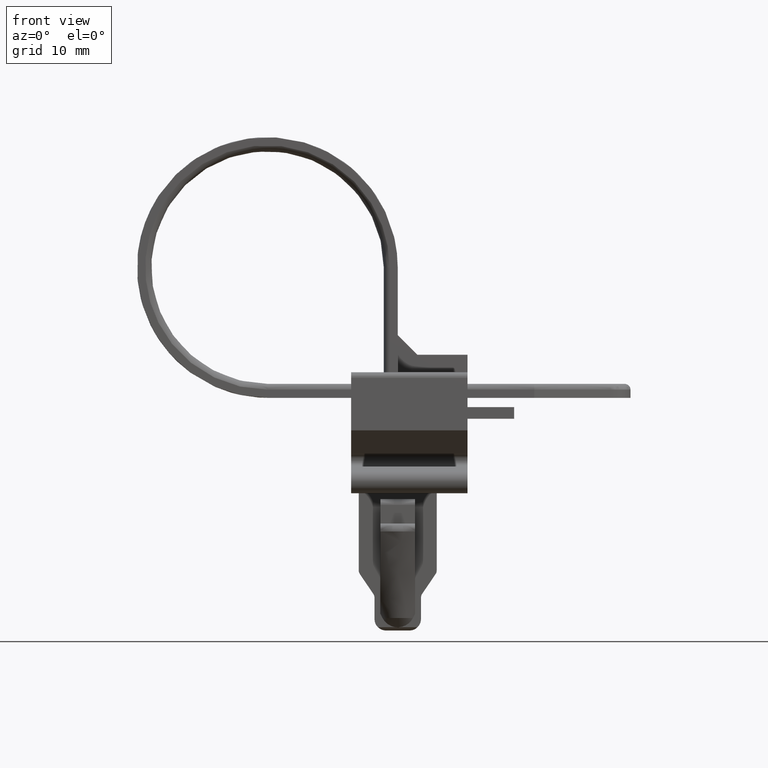
[diagram: clean part render]
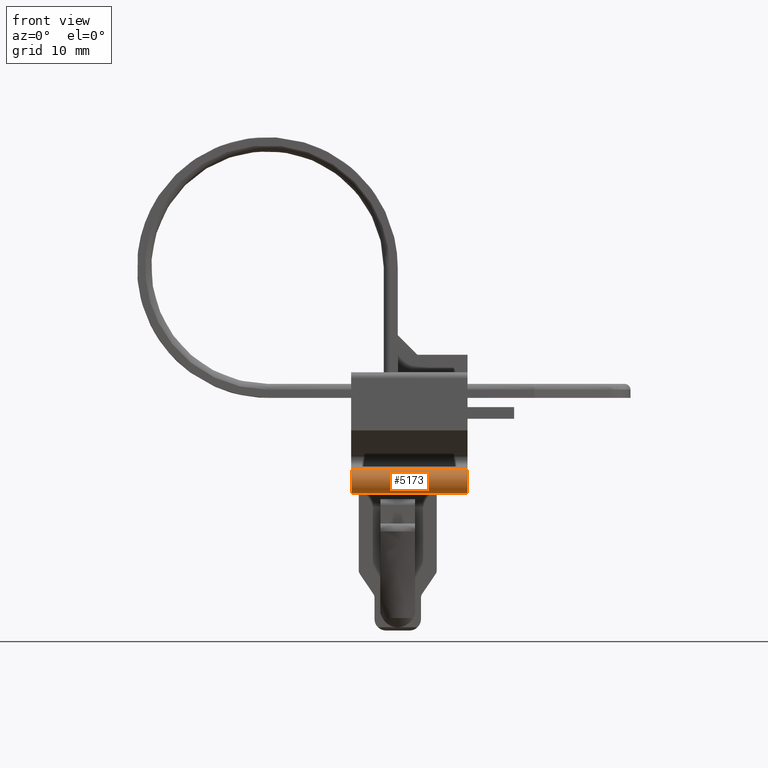
[diagram: same view with one face highlighted and labeled with its STEP entity id]
A machine part, front view. The second image highlights one B-rep face of the part: STEP entity #5173.
In plain terms, the highlighted face is a freeform B-spline surface patch.
Its self-contained STEP definition (entity closure, byte-faithful):
#4898=CARTESIAN_POINT('',(7.200000000000100,-7.879256815548451,-19.183986959648550));
#4899=VERTEX_POINT('',#4898);
#4905=CARTESIAN_POINT('',(7.200000000000100,-9.474949706095918,-18.177375280827722));
#4906=VERTEX_POINT('',#4905);
#4907=CARTESIAN_POINT('',(7.200000000000100,-7.879256815548451,-19.183986959648550));
#4908=CARTESIAN_POINT('',(7.200000000000090,-7.984860701149176,-19.267806589906218));
#4909=CARTESIAN_POINT('',(7.200000000000117,-8.201358140242341,-19.376823101879971));
#4910=CARTESIAN_POINT('',(7.200000000000092,-8.517697770892641,-19.412137261395021));
#4911=CARTESIAN_POINT('',(7.200000000000112,-8.753825177536770,-19.374386756341298));
#4912=CARTESIAN_POINT('',(7.200000000000085,-8.940727219770681,-19.303910030193531));
#4913=CARTESIAN_POINT('',(7.200000000000095,-9.095275610138501,-19.210525127734300));
#4914=CARTESIAN_POINT('',(7.200000000000067,-9.239766740479899,-19.082127573200260));
#4915=CARTESIAN_POINT('',(7.200000000000163,-9.380791900713467,-18.897387134073789));
#4916=CARTESIAN_POINT('',(7.200000000000092,-9.475021638305330,-18.669234554482550));
#4917=CARTESIAN_POINT('',(7.200000000000079,-9.508912143793260,-18.413235099029929));
#4918=CARTESIAN_POINT('',(7.200000000000111,-9.493549521142786,-18.258725168935030));
#4919=CARTESIAN_POINT('',(7.200000000000100,-9.474949706095918,-18.177375280827722));
#4920=B_SPLINE_CURVE_WITH_KNOTS('',3,(#4907,#4908,#4909,#4910,#4911,#4912,#4913,#4914,#4915,#4916,#4917,#4918,#4919),.UNSPECIFIED.,.F.,.U.,(4,1,1,1,1,1,1,1,1,1,4),(0.000000161968556,0.404421100493131,0.712574501903051,0.943678572767629,1.117021800657406,1.309582509630427,1.482896416035236,1.694756974664033,2.002897811495661,2.214758370134401,2.465103124568117),.UNSPECIFIED.);
#4921=EDGE_CURVE('',#4899,#4906,#4920,.T.);
#4923=CARTESIAN_POINT('',(7.200000000000100,-7.600477000000000,-17.963235999999899));
#4924=VERTEX_POINT('',#4923);
#4925=CARTESIAN_POINT('',(7.200000000000100,-9.474949706095918,-18.177375280827722));
#4926=CARTESIAN_POINT('',(7.200000000000100,-9.445096631506743,-18.045880986189719));
#4927=CARTESIAN_POINT('',(7.200000000000099,-9.355357458429438,-17.849242028098772));
#4928=CARTESIAN_POINT('',(7.200000000000104,-9.136410480171337,-17.611562485087450));
#4929=CARTESIAN_POINT('',(7.200000000000093,-8.914169380244152,-17.476185106331389));
#4930=CARTESIAN_POINT('',(7.200000000000105,-8.696830483152610,-17.414372422697440));
#4931=CARTESIAN_POINT('',(7.200000000000097,-8.504867302770265,-17.394301647466310));
#4932=CARTESIAN_POINT('',(7.200000000000104,-8.292280753103825,-17.411080133450412));
#4933=CARTESIAN_POINT('',(7.200000000000099,-8.022503035133340,-17.503165975851399));
#4934=CARTESIAN_POINT('',(7.200000000000101,-7.771147814698771,-17.689306946655918));
#4935=CARTESIAN_POINT('',(7.200000000000096,-7.645297522155730,-17.870824739752969));
#4936=CARTESIAN_POINT('',(7.200000000000100,-7.600477000000000,-17.963235999999899));
#4937=B_SPLINE_CURVE_WITH_KNOTS('',3,(#4925,#4926,#4927,#4928,#4929,#4930,#4931,#4932,#4933,#4934,#4935,#4936),.UNSPECIFIED.,.F.,.U.,(4,1,1,1,1,1,1,1,1,4),(0.000000161993219,0.404421139396509,0.635536330234114,0.962946700444485,1.174795107265385,1.309582635709343,1.540674411906593,1.810309501069364,2.156980729869537,2.465103361628418),.UNSPECIFIED.);
#4938=EDGE_CURVE('',#4906,#4924,#4937,.T.);
#5092=CARTESIAN_POINT('',(17.199999999999999,-7.879256815548451,-19.183986959648550));
#5093=VERTEX_POINT('',#5092);
#5099=CARTESIAN_POINT('',(17.199999999999999,-7.879256815548451,-19.183986959648550));
#5100=CARTESIAN_POINT('',(7.200000000000100,-7.879256815548451,-19.183986959648550));
#5101=QUASI_UNIFORM_CURVE('',1,(#5099,#5100),.UNSPECIFIED.,.F.,.U.);
#5102=EDGE_CURVE('',#5093,#4899,#5101,.T.);
#5107=CARTESIAN_POINT('',(17.449999999999999,-7.596699894108535,-17.971102851811519));
#5108=CARTESIAN_POINT('',(6.943750000000101,-7.596699894108535,-17.971102851811519));
#5109=CARTESIAN_POINT('',(17.449999999999996,-8.067513244581466,-16.979495790545265));
#5110=CARTESIAN_POINT('',(6.943750000000100,-8.067513244581466,-16.979495790545265));
#5111=CARTESIAN_POINT('',(17.449999999999999,-9.011065395836210,-17.540440629900431));
#5112=CARTESIAN_POINT('',(6.943750000000101,-9.011065395836210,-17.540440629900431));
#5113=CARTESIAN_POINT('',(17.449999999999996,-9.954617547090955,-18.101385469255600));
#5114=CARTESIAN_POINT('',(6.943750000000100,-9.954617547090955,-18.101385469255600));
#5115=CARTESIAN_POINT('',(17.449999999999999,-9.308398114140513,-18.988713040907609));
#5116=CARTESIAN_POINT('',(6.943750000000101,-9.308398114140513,-18.988713040907609));
#5117=CARTESIAN_POINT('',(17.449999999999996,-8.662178681190067,-19.876040612559621));
#5118=CARTESIAN_POINT('',(6.943750000000100,-8.662178681190067,-19.876040612559621));
#5119=CARTESIAN_POINT('',(17.449999999999999,-7.838758542780548,-19.150141824436719));
#5120=CARTESIAN_POINT('',(6.943750000000101,-7.838758542780548,-19.150141824436719));
#5128=(BOUNDED_SURFACE()B_SPLINE_SURFACE(1,2,((#5107,#5109,#5111,#5113,#5115,#5117,#5119),(#5108,#5110,#5112,#5114,#5116,#5118,#5120)),.UNSPECIFIED.,.F.,.F.,.U.)B_SPLINE_SURFACE_WITH_KNOTS((2,2),(3,2,2,3),(0.0,10.506249999999900),(0.0,1.0,2.0,3.0),.UNSPECIFIED.)GEOMETRIC_REPRESENTATION_ITEM()RATIONAL_B_SPLINE_SURFACE(((1.0,0.673442699518900,1.0,0.673442699518900,1.0,0.673442699518900,1.0),(1.0,0.673442699518900,1.0,0.673442699518900,1.0,0.673442699518900,1.0)))REPRESENTATION_ITEM('')SURFACE());
#5129=ORIENTED_EDGE('',*,*,#4938,.F.);
#5130=ORIENTED_EDGE('',*,*,#4921,.F.);
#5131=ORIENTED_EDGE('',*,*,#5102,.F.);
#5132=CARTESIAN_POINT('',(17.199999999999999,-9.474949706095918,-18.177375280827722));
#5133=VERTEX_POINT('',#5132);
#5134=CARTESIAN_POINT('',(17.199999999999999,-7.879256815548451,-19.183986959648550));
#5135=CARTESIAN_POINT('',(17.199999999999971,-7.984860709036764,-19.267806589957878));
#5136=CARTESIAN_POINT('',(17.200000000000049,-8.201358117648402,-19.376823101731990));
#5137=CARTESIAN_POINT('',(17.199999999999971,-8.517697803864797,-19.412137261610969));
#5138=CARTESIAN_POINT('',(17.200000000000049,-8.753825108931643,-19.374386755891969));
#5139=CARTESIAN_POINT('',(17.199999999999960,-8.940721133782530,-19.303903355469458));
#5140=CARTESIAN_POINT('',(17.199999999999921,-9.139477633322612,-19.183881222332332));
#5141=CARTESIAN_POINT('',(17.200000000000149,-9.320108325005601,-18.996579684782091));
#5142=CARTESIAN_POINT('',(17.199999999999921,-9.460120377380365,-18.726596070932811));
#5143=CARTESIAN_POINT('',(17.200000000000021,-9.512806700239761,-18.451876385359249));
#5144=CARTESIAN_POINT('',(17.200000000000010,-9.493541944888328,-18.258723384757619));
#5145=CARTESIAN_POINT('',(17.199999999999999,-9.474949706095918,-18.177375280827722));
#5146=B_SPLINE_CURVE_WITH_KNOTS('',3,(#5134,#5135,#5136,#5137,#5138,#5139,#5140,#5141,#5142,#5143,#5144,#5145),.UNSPECIFIED.,.F.,.U.,(4,1,1,1,1,1,1,1,1,4),(0.000000161968556,0.404421100493131,0.712574501903051,0.943678572767629,1.117021800657406,1.309582509630427,1.636981546477859,1.887345459193603,2.214758370134401,2.465103124568117),.UNSPECIFIED.);
#5147=EDGE_CURVE('',#5093,#5133,#5146,.T.);
#5148=ORIENTED_EDGE('',*,*,#5147,.T.);
#5149=CARTESIAN_POINT('',(17.199999999999999,-7.600477000000000,-17.963235999999899));
#5150=VERTEX_POINT('',#5149);
#5151=CARTESIAN_POINT('',(17.199999999999999,-9.474949706095918,-18.177375280827722));
#5152=CARTESIAN_POINT('',(17.200000000000010,-9.445096631506788,-18.045880986189690));
#5153=CARTESIAN_POINT('',(17.199999999999999,-9.355357458429282,-17.849242028098889));
#5154=CARTESIAN_POINT('',(17.199999999999999,-9.136410480171714,-17.611562485087180));
#5155=CARTESIAN_POINT('',(17.199999999999999,-8.914169380242882,-17.476185106332249));
#5156=CARTESIAN_POINT('',(17.200000000000010,-8.696830483157379,-17.414372422694399));
#5157=CARTESIAN_POINT('',(17.199999999999999,-8.504867302718880,-17.394301647753888));
#5158=CARTESIAN_POINT('',(17.199999999999999,-8.292280749088214,-17.411080140810860));
#5159=CARTESIAN_POINT('',(17.199999999999999,-8.022503063769715,-17.503165919032892));
#5160=CARTESIAN_POINT('',(17.200000000000021,-7.771147716440904,-17.689307143858780));
#5161=CARTESIAN_POINT('',(17.199999999999971,-7.645297700153328,-17.870824376661211));
#5162=CARTESIAN_POINT('',(17.199999999999999,-7.600477000000000,-17.963235999999899));
#5163=B_SPLINE_CURVE_WITH_KNOTS('',3,(#5151,#5152,#5153,#5154,#5155,#5156,#5157,#5158,#5159,#5160,#5161,#5162),.UNSPECIFIED.,.F.,.U.,(4,1,1,1,1,1,1,1,1,4),(0.000000161993219,0.404421139396509,0.635536330234114,0.962946700444485,1.174795107265385,1.309582635709343,1.540674411906593,1.810309501069364,2.156980729869537,2.465103361628418),.UNSPECIFIED.);
#5164=EDGE_CURVE('',#5133,#5150,#5163,.T.);
#5165=ORIENTED_EDGE('',*,*,#5164,.T.);
#5166=CARTESIAN_POINT('',(17.199999999999999,-7.600477000000000,-17.963235999999899));
#5167=CARTESIAN_POINT('',(7.200000000000100,-7.600477000000000,-17.963235999999899));
#5168=QUASI_UNIFORM_CURVE('',1,(#5166,#5167),.UNSPECIFIED.,.F.,.U.);
#5169=EDGE_CURVE('',#5150,#4924,#5168,.T.);
#5170=ORIENTED_EDGE('',*,*,#5169,.T.);
#5171=EDGE_LOOP('',(#5129,#5130,#5131,#5148,#5165,#5170));
#5172=FACE_OUTER_BOUND('',#5171,.T.);
#5173=ADVANCED_FACE('',(#5172),#5128,.T.);